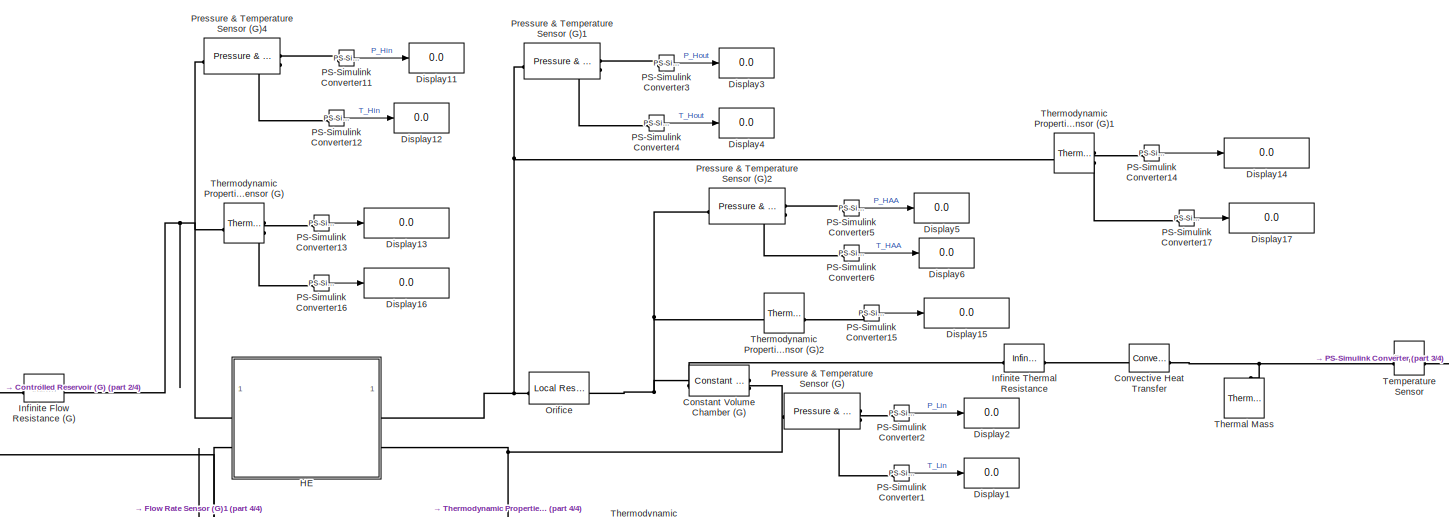
[diagram: root canvas - part 1/4, top center region]
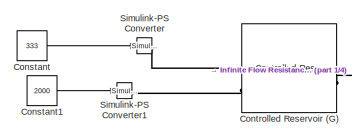
[diagram: root canvas - part 2/4, middle left region]
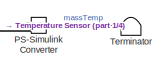
[diagram: root canvas - part 3/4, middle right region]
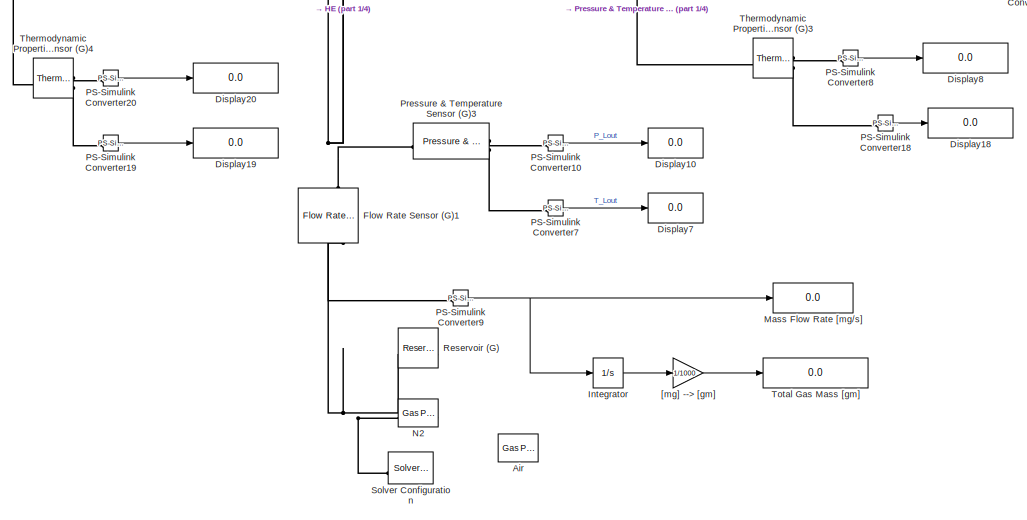
[diagram: root canvas - part 4/4, bottom center region]
MODEL slx_ab4cb6efce51
KIND model
CONFIG AbsTol = 1e-3
CONFIG EnableMultiTasking = off
CONFIG FixedStep = 0.01
CONFIG InitFcn = run Sim__Init.m
CONFIG MaxStep = auto
CONFIG MinStep = auto
CONFIG RelTol = 1e-3
CONFIG SampleTimeConstraint = Unconstrained
CONFIG SolverName = VariableStepAuto
CONFIG StartTime = 0.0
CONFIG StopTime = 10000
BLOCK [Reference] Air  REF=fl_lib/Gas/Utilities/Gas Properties (G)
  Commented = on
  NameLocation = top
  SourceBlock = fl_lib/Gas/Utilities/Gas Properties (G)
  SourceType = Gas Properties (G)
BLOCK [Constant] Constant
  Value = 333
BLOCK [Reference] Constant Volume Chamber (G)  REF=fl_lib/Gas/Elements/Constant Volume
Chamber (G)
  NameLocation = top
  SourceBlock = fl_lib/Gas/Elements/Constant Volume\nChamber (G)
  SourceType = Constant Volume\nChamber (G)
BLOCK [Constant] Constant1
  Value = 2000
BLOCK [Reference] Controlled Reservoir (G)  REF=fl_lib/Gas/Elements/Controlled Reservoir
(G)
  SourceBlock = fl_lib/Gas/Elements/Controlled Reservoir\n(G)
  SourceType = Controlled Reservoir\n(G)
BLOCK [Reference] Convective Heat Transfer  REF=fl_lib/Thermal/Thermal Elements/Convective Heat
Transfer
  NameLocation = top
  SourceBlock = fl_lib/Thermal/Thermal Elements/Convective Heat\nTransfer
  SourceType = Convective Heat\nTransfer
BLOCK [Display] Display1
  Decimation = 1
BLOCK [Display] Display10
  Decimation = 1
BLOCK [Display] Display11
  Decimation = 1
BLOCK [Display] Display12
  Decimation = 1
BLOCK [Display] Display13
  Decimation = 1
BLOCK [Display] Display14
  Decimation = 1
BLOCK [Display] Display15
  Decimation = 1
BLOCK [Display] Display16
  Decimation = 1
BLOCK [Display] Display17
  Decimation = 1
BLOCK [Display] Display18
  Decimation = 1
BLOCK [Display] Display19
  Decimation = 1
BLOCK [Display] Display2
  Decimation = 1
BLOCK [Display] Display20
  Decimation = 1
BLOCK [Display] Display3
  Decimation = 1
BLOCK [Display] Display4
  Decimation = 1
BLOCK [Display] Display5
  Decimation = 1
BLOCK [Display] Display6
  Decimation = 1
BLOCK [Display] Display7
  Decimation = 1
BLOCK [Display] Display8
  Decimation = 1
BLOCK [Reference] Flow Rate Sensor (G)1  REF=fl_lib/Gas/Sensors/Flow Rate Sensor (G)
  NameLocation = left
  SourceBlock = fl_lib/Gas/Sensors/Flow Rate Sensor (G)
  SourceType = Flow Rate Sensor (G)
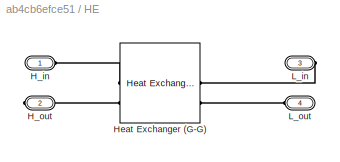
BLOCK [SubSystem] HE
BLOCK [PMIOPort] HE/H_in
  Side = Left
BLOCK [PMIOPort] HE/H_out
  Port = 2
  Side = Right
BLOCK [Reference] HE/Heat Exchanger (G-G)  REF=SimscapeFluids_lib/Heat Exchangers/Gas/Heat Exchanger (G-G)
  SourceBlock = SimscapeFluids_lib/Heat Exchangers/Gas/Heat Exchanger (G-G)
  SourceType = Heat Exchanger (G-G)
BLOCK [PMIOPort] HE/L_in
  Port = 3
  Side = Right
BLOCK [PMIOPort] HE/L_out
  Port = 4
  Side = Left
BLOCK [Reference] Infinite Flow Resistance (G)  REF=fl_lib/Gas/Elements/Infinite Flow
Resistance (G)
  Commented = through
  SourceBlock = fl_lib/Gas/Elements/Infinite Flow\nResistance (G)
  SourceType = Infinite Flow\nResistance (G)
BLOCK [Reference] Infinite Thermal Resistance  REF=fl_lib/Thermal/Thermal Elements/Infinite Thermal
Resistance
  Commented = through
  SourceBlock = fl_lib/Thermal/Thermal Elements/Infinite Thermal\nResistance
  SourceType = Infinite Thermal\nResistance
BLOCK [Integrator] Integrator
BLOCK [Display] Mass Flow Rate [mg//s]
  Decimation = 1
BLOCK [Reference] N2  REF=fl_lib/Gas/Utilities/Gas Properties (G)
  NameLocation = top
  SourceBlock = fl_lib/Gas/Utilities/Gas Properties (G)
  SourceType = Gas Properties (G)
BLOCK [Reference] Orifice  REF=fl_lib/Gas/Elements/Local Restriction
(G)
  SourceBlock = fl_lib/Gas/Elements/Local Restriction\n(G)
  SourceType = Local Restriction\n(G)
BLOCK [Reference] PS-Simulink Converter  REF=nesl_utility/PS-Simulink
Converter
  SourceBlock = nesl_utility/PS-Simulink\nConverter
  SourceType = PS-Simulink\nConverter
BLOCK [Reference] PS-Simulink Converter1  REF=nesl_utility/PS-Simulink
Converter
  SourceBlock = nesl_utility/PS-Simulink\nConverter
  SourceType = PS-Simulink\nConverter
BLOCK [Reference] PS-Simulink Converter10  REF=nesl_utility/PS-Simulink
Converter
  SourceBlock = nesl_utility/PS-Simulink\nConverter
  SourceType = PS-Simulink\nConverter
BLOCK [Reference] PS-Simulink Converter11  REF=nesl_utility/PS-Simulink
Converter
  SourceBlock = nesl_utility/PS-Simulink\nConverter
  SourceType = PS-Simulink\nConverter
BLOCK [Reference] PS-Simulink Converter12  REF=nesl_utility/PS-Simulink
Converter
  SourceBlock = nesl_utility/PS-Simulink\nConverter
  SourceType = PS-Simulink\nConverter
BLOCK [Reference] PS-Simulink Converter13  REF=nesl_utility/PS-Simulink
Converter
  SourceBlock = nesl_utility/PS-Simulink\nConverter
  SourceType = PS-Simulink\nConverter
BLOCK [Reference] PS-Simulink Converter14  REF=nesl_utility/PS-Simulink
Converter
  SourceBlock = nesl_utility/PS-Simulink\nConverter
  SourceType = PS-Simulink\nConverter
BLOCK [Reference] PS-Simulink Converter15  REF=nesl_utility/PS-Simulink
Converter
  SourceBlock = nesl_utility/PS-Simulink\nConverter
  SourceType = PS-Simulink\nConverter
BLOCK [Reference] PS-Simulink Converter16  REF=nesl_utility/PS-Simulink
Converter
  SourceBlock = nesl_utility/PS-Simulink\nConverter
  SourceType = PS-Simulink\nConverter
BLOCK [Reference] PS-Simulink Converter17  REF=nesl_utility/PS-Simulink
Converter
  SourceBlock = nesl_utility/PS-Simulink\nConverter
  SourceType = PS-Simulink\nConverter
BLOCK [Reference] PS-Simulink Converter18  REF=nesl_utility/PS-Simulink
Converter
  SourceBlock = nesl_utility/PS-Simulink\nConverter
  SourceType = PS-Simulink\nConverter
BLOCK [Reference] PS-Simulink Converter19  REF=nesl_utility/PS-Simulink
Converter
  SourceBlock = nesl_utility/PS-Simulink\nConverter
  SourceType = PS-Simulink\nConverter
BLOCK [Reference] PS-Simulink Converter2  REF=nesl_utility/PS-Simulink
Converter
  SourceBlock = nesl_utility/PS-Simulink\nConverter
  SourceType = PS-Simulink\nConverter
BLOCK [Reference] PS-Simulink Converter20  REF=nesl_utility/PS-Simulink
Converter
  SourceBlock = nesl_utility/PS-Simulink\nConverter
  SourceType = PS-Simulink\nConverter
BLOCK [Reference] PS-Simulink Converter3  REF=nesl_utility/PS-Simulink
Converter
  SourceBlock = nesl_utility/PS-Simulink\nConverter
  SourceType = PS-Simulink\nConverter
BLOCK [Reference] PS-Simulink Converter4  REF=nesl_utility/PS-Simulink
Converter
  SourceBlock = nesl_utility/PS-Simulink\nConverter
  SourceType = PS-Simulink\nConverter
BLOCK [Reference] PS-Simulink Converter5  REF=nesl_utility/PS-Simulink
Converter
  SourceBlock = nesl_utility/PS-Simulink\nConverter
  SourceType = PS-Simulink\nConverter
BLOCK [Reference] PS-Simulink Converter6  REF=nesl_utility/PS-Simulink
Converter
  SourceBlock = nesl_utility/PS-Simulink\nConverter
  SourceType = PS-Simulink\nConverter
BLOCK [Reference] PS-Simulink Converter7  REF=nesl_utility/PS-Simulink
Converter
  SourceBlock = nesl_utility/PS-Simulink\nConverter
  SourceType = PS-Simulink\nConverter
BLOCK [Reference] PS-Simulink Converter8  REF=nesl_utility/PS-Simulink
Converter
  SourceBlock = nesl_utility/PS-Simulink\nConverter
  SourceType = PS-Simulink\nConverter
BLOCK [Reference] PS-Simulink Converter9  REF=nesl_utility/PS-Simulink
Converter
  SourceBlock = nesl_utility/PS-Simulink\nConverter
  SourceType = PS-Simulink\nConverter
BLOCK [Reference] Pressure & Temperature Sensor (G)  REF=fl_lib/Gas/Sensors/Pressure &
Temperature Sensor
(G)
  SourceBlock = fl_lib/Gas/Sensors/Pressure &\nTemperature Sensor\n(G)
  SourceType = Pressure &\nTemperature Sensor\n(G)
BLOCK [Reference] Pressure & Temperature Sensor (G)1  REF=fl_lib/Gas/Sensors/Pressure &
Temperature Sensor
(G)
  SourceBlock = fl_lib/Gas/Sensors/Pressure &\nTemperature Sensor\n(G)
  SourceType = Pressure &\nTemperature Sensor\n(G)
BLOCK [Reference] Pressure & Temperature Sensor (G)2  REF=fl_lib/Gas/Sensors/Pressure &
Temperature Sensor
(G)
  SourceBlock = fl_lib/Gas/Sensors/Pressure &\nTemperature Sensor\n(G)
  SourceType = Pressure &\nTemperature Sensor\n(G)
BLOCK [Reference] Pressure & Temperature Sensor (G)3  REF=fl_lib/Gas/Sensors/Pressure &
Temperature Sensor
(G)
  SourceBlock = fl_lib/Gas/Sensors/Pressure &\nTemperature Sensor\n(G)
  SourceType = Pressure &\nTemperature Sensor\n(G)
BLOCK [Reference] Pressure & Temperature Sensor (G)4  REF=fl_lib/Gas/Sensors/Pressure &
Temperature Sensor
(G)
  SourceBlock = fl_lib/Gas/Sensors/Pressure &\nTemperature Sensor\n(G)
  SourceType = Pressure &\nTemperature Sensor\n(G)
BLOCK [Reference] Reservoir (G)  REF=fl_lib/Gas/Elements/Reservoir (G)
  NameLocation = top
  SourceBlock = fl_lib/Gas/Elements/Reservoir (G)
  SourceType = Reservoir (G)
BLOCK [Reference] Simulink-PS Converter  REF=nesl_utility/Simulink-PS
Converter
  SourceBlock = nesl_utility/Simulink-PS\nConverter
  SourceType = Simulink-PS\nConverter
BLOCK [Reference] Simulink-PS Converter1  REF=nesl_utility/Simulink-PS
Converter
  SourceBlock = nesl_utility/Simulink-PS\nConverter
  SourceType = Simulink-PS\nConverter
BLOCK [Reference] Solver Configuration  REF=nesl_utility/Solver
Configuration
  NameLocation = top
  SourceBlock = nesl_utility/Solver\nConfiguration
  SourceType = Solver\nConfiguration
BLOCK [Reference] Temperature Sensor  REF=fl_lib/Thermal/Thermal Sensors/Temperature Sensor
  SourceBlock = fl_lib/Thermal/Thermal Sensors/Temperature Sensor
  SourceType = Temperature Sensor
BLOCK [Terminator] Terminator
BLOCK [Reference] Thermal Mass  REF=fl_lib/Thermal/Thermal Elements/Thermal Mass
  NameLocation = right
  SourceBlock = fl_lib/Thermal/Thermal Elements/Thermal Mass
  SourceType = Thermal Mass
BLOCK [Reference] Thermodynamic Properties Sensor (G)  REF=fl_lib/Gas/Sensors/Thermodynamic
Properties Sensor
(G)
  SourceBlock = fl_lib/Gas/Sensors/Thermodynamic\nProperties Sensor\n(G)
  SourceType = Thermodynamic\nProperties Sensor\n(G)
BLOCK [Reference] Thermodynamic Properties Sensor (G)1  REF=fl_lib/Gas/Sensors/Thermodynamic
Properties Sensor
(G)
  SourceBlock = fl_lib/Gas/Sensors/Thermodynamic\nProperties Sensor\n(G)
  SourceType = Thermodynamic\nProperties Sensor\n(G)
BLOCK [Reference] Thermodynamic Properties Sensor (G)2  REF=fl_lib/Gas/Sensors/Thermodynamic
Properties Sensor
(G)
  SourceBlock = fl_lib/Gas/Sensors/Thermodynamic\nProperties Sensor\n(G)
  SourceType = Thermodynamic\nProperties Sensor\n(G)
BLOCK [Reference] Thermodynamic Properties Sensor (G)3  REF=fl_lib/Gas/Sensors/Thermodynamic
Properties Sensor
(G)
  SourceBlock = fl_lib/Gas/Sensors/Thermodynamic\nProperties Sensor\n(G)
  SourceType = Thermodynamic\nProperties Sensor\n(G)
BLOCK [Reference] Thermodynamic Properties Sensor (G)4  REF=fl_lib/Gas/Sensors/Thermodynamic
Properties Sensor
(G)
  SourceBlock = fl_lib/Gas/Sensors/Thermodynamic\nProperties Sensor\n(G)
  SourceType = Thermodynamic\nProperties Sensor\n(G)
BLOCK [Display] Total Gas Mass [gm]
  Decimation = 1
BLOCK [Gain] [mg] --> [gm]
  Gain = 1/1000
LINE Constant1:1 -> Simulink-PS Converter1:1
LINE Constant:1 -> Simulink-PS Converter:1
LINE Integrator:1 -> [mg] --> [gm]:1
LINE PS-Simulink Converter10:1 -> Display10:1
LINE PS-Simulink Converter11:1 -> Display11:1
LINE PS-Simulink Converter12:1 -> Display12:1
LINE PS-Simulink Converter13:1 -> Display13:1
LINE PS-Simulink Converter14:1 -> Display14:1
LINE PS-Simulink Converter15:1 -> Display15:1
LINE PS-Simulink Converter16:1 -> Display16:1
LINE PS-Simulink Converter17:1 -> Display17:1
LINE PS-Simulink Converter18:1 -> Display18:1
LINE PS-Simulink Converter19:1 -> Display19:1
LINE PS-Simulink Converter1:1 -> Display1:1
LINE PS-Simulink Converter20:1 -> Display20:1
LINE PS-Simulink Converter2:1 -> Display2:1
LINE PS-Simulink Converter3:1 -> Display3:1
LINE PS-Simulink Converter4:1 -> Display4:1
LINE PS-Simulink Converter5:1 -> Display5:1
LINE PS-Simulink Converter6:1 -> Display6:1
LINE PS-Simulink Converter7:1 -> Display7:1
LINE PS-Simulink Converter8:1 -> Display8:1
NET PS-Simulink Converter9:1 -> Integrator:1, Mass Flow Rate [mg//s]:1
LINE PS-Simulink Converter:1 -> Terminator:1
LINE [mg] --> [gm]:1 -> Total Gas Mass [gm]:1
PNET net1: Constant Volume Chamber (G):LConn1 -- Orifice:RConn1 -- Pressure & Temperature Sensor (G)2:LConn1 -- Thermodynamic Properties Sensor (G)2:LConn1
PLINE Constant Volume Chamber (G):LConn2 -- Infinite Thermal Resistance:LConn1
PNET net2: Constant Volume Chamber (G):RConn1 -- HE:RConn2 -- Pressure & Temperature Sensor (G):LConn1 -- Thermodynamic Properties Sensor (G)3:LConn1
PLINE Controlled Reservoir (G):LConn1 -- Infinite Flow Resistance (G):LConn1
PLINE Controlled Reservoir (G):RConn1 -- Simulink-PS Converter:RConn1
PLINE Controlled Reservoir (G):RConn2 -- Simulink-PS Converter1:RConn1
PNET net3: Convective Heat Transfer:LConn1 -- Temperature Sensor:LConn1 -- Thermal Mass:LConn1
PLINE Convective Heat Transfer:RConn1 -- Infinite Thermal Resistance:RConn1
PNET net4: Flow Rate Sensor (G)1:LConn1 -- HE:LConn2 -- Pressure & Temperature Sensor (G)3:LConn1 -- Thermodynamic Properties Sensor (G)4:LConn1
PNET net5: Flow Rate Sensor (G)1:RConn1 -- N2:RConn1 -- Reservoir (G):LConn1 -- Solver Configuration:RConn1
PLINE Flow Rate Sensor (G)1:RConn2 -- PS-Simulink Converter9:LConn1
PLINE HE/H_in:RConn1 -- HE/Heat Exchanger (G-G):LConn1
PLINE HE/H_out:RConn1 -- HE/Heat Exchanger (G-G):LConn2
PLINE HE/Heat Exchanger (G-G):RConn1 -- HE/L_in:RConn1
PLINE HE/Heat Exchanger (G-G):RConn2 -- HE/L_out:RConn1
PNET net6: HE:LConn1 -- Infinite Flow Resistance (G):RConn1 -- Pressure & Temperature Sensor (G)4:LConn1 -- Thermodynamic Properties Sensor (G):LConn1
PNET net7: HE:RConn1 -- Orifice:LConn1 -- Pressure & Temperature Sensor (G)1:LConn1 -- Thermodynamic Properties Sensor (G)1:LConn1
PLINE PS-Simulink Converter10:LConn1 -- Pressure & Temperature Sensor (G)3:RConn1
PLINE PS-Simulink Converter11:LConn1 -- Pressure & Temperature Sensor (G)4:RConn1
PLINE PS-Simulink Converter12:LConn1 -- Pressure & Temperature Sensor (G)4:RConn2
PLINE PS-Simulink Converter13:LConn1 -- Thermodynamic Properties Sensor (G):RConn1
PLINE PS-Simulink Converter14:LConn1 -- Thermodynamic Properties Sensor (G)1:RConn1
PLINE PS-Simulink Converter15:LConn1 -- Thermodynamic Properties Sensor (G)2:RConn1
PLINE PS-Simulink Converter16:LConn1 -- Thermodynamic Properties Sensor (G):RConn2
PLINE PS-Simulink Converter17:LConn1 -- Thermodynamic Properties Sensor (G)1:RConn2
PLINE PS-Simulink Converter18:LConn1 -- Thermodynamic Properties Sensor (G)3:RConn2
PLINE PS-Simulink Converter19:LConn1 -- Thermodynamic Properties Sensor (G)4:RConn2
PLINE PS-Simulink Converter1:LConn1 -- Pressure & Temperature Sensor (G):RConn2
PLINE PS-Simulink Converter20:LConn1 -- Thermodynamic Properties Sensor (G)4:RConn1
PLINE PS-Simulink Converter2:LConn1 -- Pressure & Temperature Sensor (G):RConn1
PLINE PS-Simulink Converter3:LConn1 -- Pressure & Temperature Sensor (G)1:RConn1
PLINE PS-Simulink Converter4:LConn1 -- Pressure & Temperature Sensor (G)1:RConn2
PLINE PS-Simulink Converter5:LConn1 -- Pressure & Temperature Sensor (G)2:RConn1
PLINE PS-Simulink Converter6:LConn1 -- Pressure & Temperature Sensor (G)2:RConn2
PLINE PS-Simulink Converter7:LConn1 -- Pressure & Temperature Sensor (G)3:RConn2
PLINE PS-Simulink Converter8:LConn1 -- Thermodynamic Properties Sensor (G)3:RConn1
PLINE PS-Simulink Converter:LConn1 -- Temperature Sensor:RConn1
note: NET lines group one-source signal fan-out (src -> all destinations, sorted); 1:1 wires keep LINE; PNET lines group multi-terminal physical nets as a canonical sorted terminal list (undirected conserving connections); 2-terminal nets keep the pairwise PLINE form
